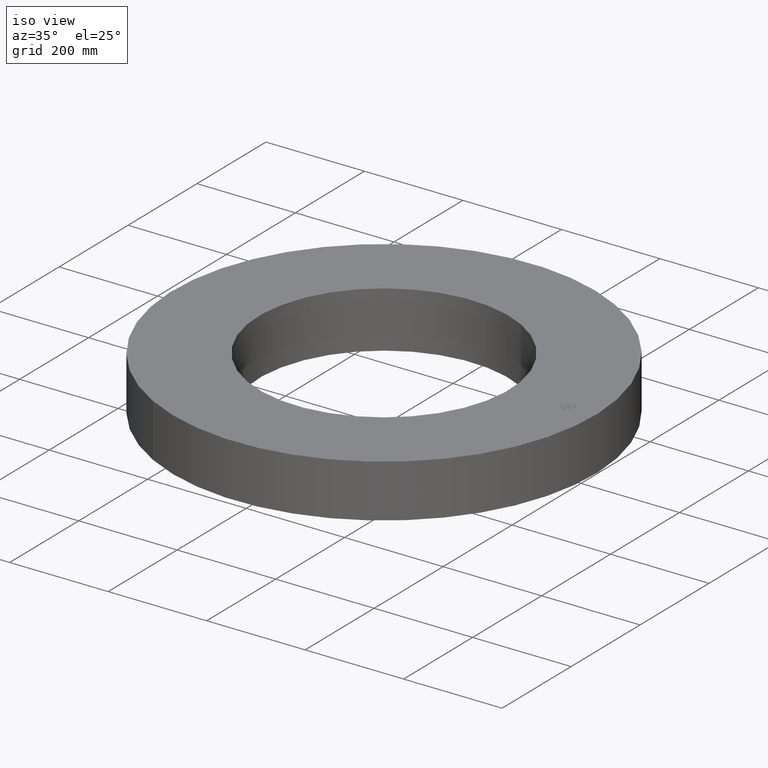
[diagram: clean part render]
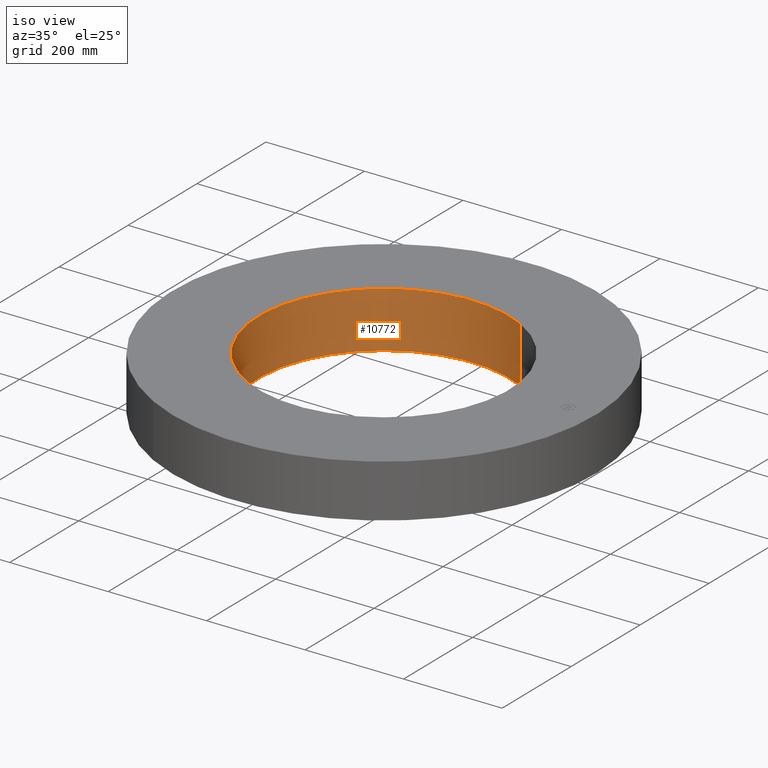
[diagram: same view with one face highlighted and labeled with its STEP entity id]
A machine part, iso view. The second image highlights one B-rep face of the part: STEP entity #10772.
In plain terms, the highlighted cylindrical surface (partial cylindrical patch) has radius 254 mm, axis along (0, 0, -1).
Its self-contained STEP definition (entity closure, byte-faithful):
#10722=AXIS2_PLACEMENT_3D('Circle Axis2P3D',#10720,#10721,$) ;
#10733=AXIS2_PLACEMENT_3D('Cylinder Axis2P3D',#10730,#10731,#10732) ;
#10763=AXIS2_PLACEMENT_3D('Circle Axis2P3D',#10761,#10762,$) ;
#10715=CARTESIAN_POINT('Vertex',(4.79425538606,8.77582561894,-0.250000000001)) ;
#10717=CARTESIAN_POINT('Vertex',(-4.79425538606,-8.77582561894,-0.250000000001)) ;
#10720=CARTESIAN_POINT('Axis2P3D Location',(0.,0.,-0.250000000001)) ;
#10730=CARTESIAN_POINT('Axis2P3D Location',(0.,0.,2.00000000001)) ;
#10739=CARTESIAN_POINT('Vertex',(4.79425538606,8.77582561894,4.25000000002)) ;
#10741=CARTESIAN_POINT('Vertex',(-4.79425538606,-8.77582561894,4.25000000002)) ;
#10744=CARTESIAN_POINT('Line Origine',(4.79425538606,8.77582561894,2.00000000001)) ;
#10749=CARTESIAN_POINT('Line Origine',(-4.79425538606,-8.77582561894,2.00000000001)) ;
#10761=CARTESIAN_POINT('Axis2P3D Location',(0.,0.,4.25000000002)) ;
#10721=DIRECTION('Axis2P3D Direction',(0.,0.,-0.0393700787402)) ;
#10731=DIRECTION('Axis2P3D Direction',(0.,0.,-0.0393700787402)) ;
#10732=DIRECTION('Axis2P3D XDirection',(-0.0188750212049,-0.0345504945626,0.)) ;
#10745=DIRECTION('Vector Direction',(0.,0.,-0.0393700787402)) ;
#10750=DIRECTION('Vector Direction',(0.,0.,-0.0393700787402)) ;
#10762=DIRECTION('Axis2P3D Direction',(0.,0.,-0.0393700787402)) ;
#10746=VECTOR('Line Direction',#10745,0.0393700787402) ;
#10751=VECTOR('Line Direction',#10750,0.0393700787402) ;
#10767=ORIENTED_EDGE('',*,*,#10765,.F.) ;
#10768=ORIENTED_EDGE('',*,*,#10753,.T.) ;
#10769=ORIENTED_EDGE('',*,*,#10724,.T.) ;
#10770=ORIENTED_EDGE('',*,*,#10748,.F.) ;
#10772=ADVANCED_FACE('PartBody',(#10771),#10734,.F.) ;
#10723=CIRCLE('generated circle',#10722,10.) ;
#10764=CIRCLE('generated circle',#10763,10.) ;
#10734=CYLINDRICAL_SURFACE('generated cylinder',#10733,10.) ;
#10724=EDGE_CURVE('',#10718,#10716,#10723,.T.) ;
#10748=EDGE_CURVE('',#10740,#10716,#10747,.T.) ;
#10753=EDGE_CURVE('',#10742,#10718,#10752,.T.) ;
#10765=EDGE_CURVE('',#10742,#10740,#10764,.T.) ;
#10766=EDGE_LOOP('',(#10767,#10768,#10769,#10770)) ;
#10771=FACE_OUTER_BOUND('',#10766,.T.) ;
#10747=LINE('Line',#10744,#10746) ;
#10752=LINE('Line',#10749,#10751) ;
#10716=VERTEX_POINT('',#10715) ;
#10718=VERTEX_POINT('',#10717) ;
#10740=VERTEX_POINT('',#10739) ;
#10742=VERTEX_POINT('',#10741) ;